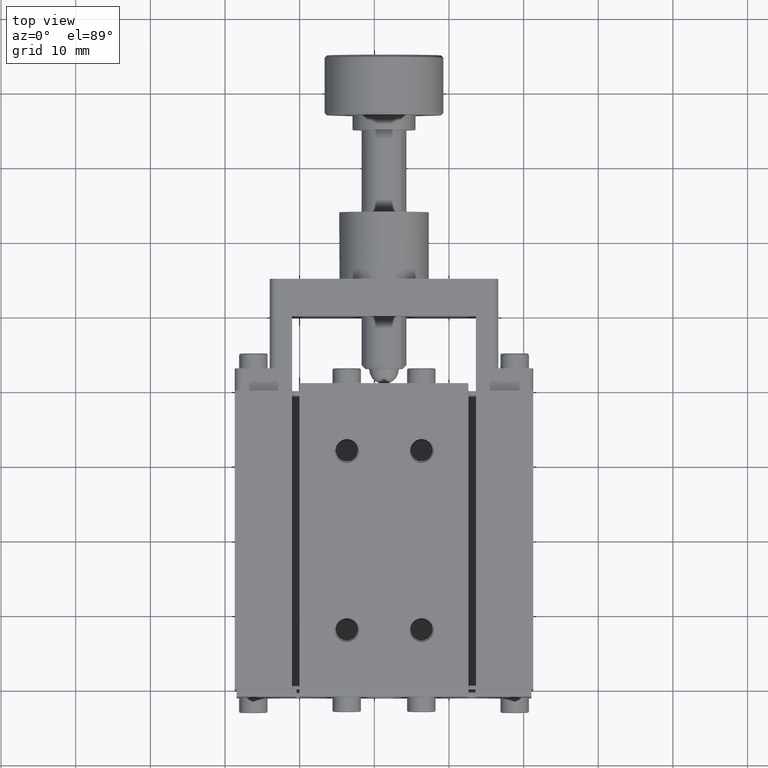
[diagram: clean part render]
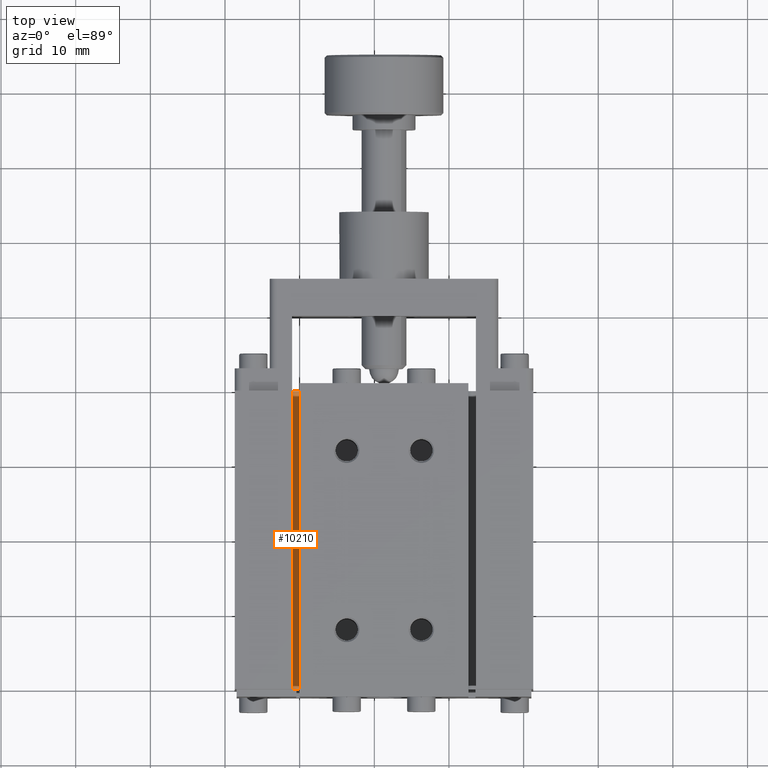
[diagram: same view with one face highlighted and labeled with its STEP entity id]
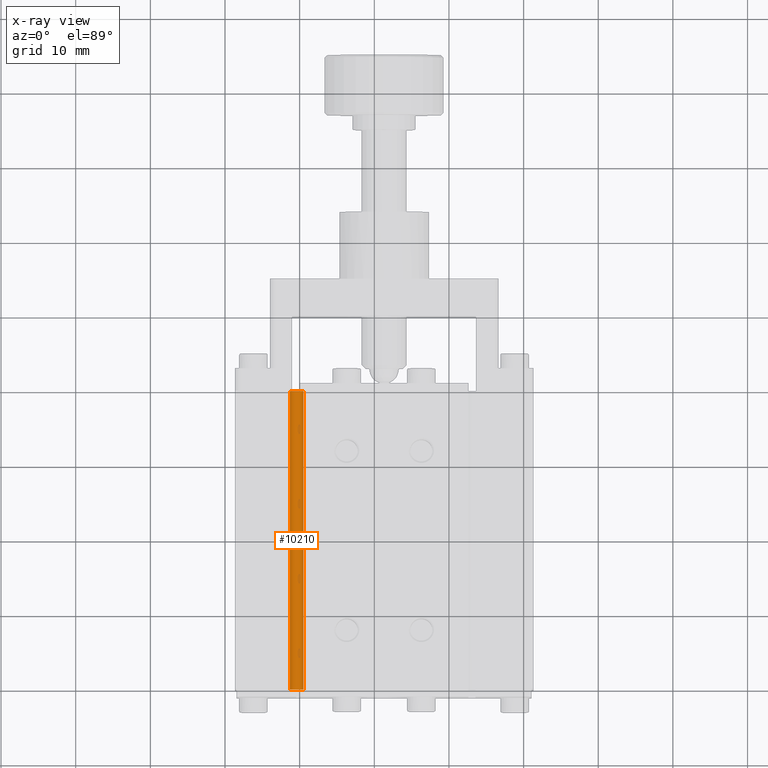
[diagram: x-ray of the same camera — body ghosted, the highlighted face saturated]
A machine part, top view. The second image highlights one B-rep face of the part: STEP entity #10210.
The next image is the same camera in x-ray: the body ghosted, the highlighted face saturated — about 0% of this face is hidden behind the body in this view.
In plain terms, the highlighted cylindrical surface (edge-blend (fillet) strip) has radius 1 mm, axis along (0, -1, 0).
Its self-contained STEP definition (entity closure, byte-faithful):
#381=CYLINDRICAL_SURFACE('',#10940,1.);
#1235=FACE_OUTER_BOUND('',#1832,.T.);
#1832=EDGE_LOOP('',(#8570,#8571,#8572,#8573,#8574,#8575,#8576,#8577,#8578,
#8579,#8580,#8581));
#2610=LINE('',#16550,#3475);
#2611=LINE('',#16551,#3476);
#3475=VECTOR('',#12746,10.);
#3476=VECTOR('',#12747,10.);
#3813=CIRCLE('',#10654,1.);
#3816=CIRCLE('',#10660,1.);
#3866=CIRCLE('',#10745,1.);
#3867=CIRCLE('',#10746,1.);
#3873=CIRCLE('',#10759,1.);
#3879=CIRCLE('',#10769,1.);
#3955=CIRCLE('',#10941,1.);
#3956=CIRCLE('',#10942,1.);
#3957=CIRCLE('',#10943,1.);
#3958=CIRCLE('',#10944,1.);
#4528=VERTEX_POINT('',#16014);
#4529=VERTEX_POINT('',#16016);
#4534=VERTEX_POINT('',#16032);
#4535=VERTEX_POINT('',#16033);
#4609=VERTEX_POINT('',#16255);
#4610=VERTEX_POINT('',#16257);
#4627=VERTEX_POINT('',#16304);
#4628=VERTEX_POINT('',#16306);
#4646=VERTEX_POINT('',#16347);
#4647=VERTEX_POINT('',#16349);
#4755=VERTEX_POINT('',#17081);
#4756=VERTEX_POINT('',#17083);
#5678=EDGE_CURVE('',#4528,#4529,#3813,.T.);
#5685=EDGE_CURVE('',#4534,#4535,#3816,.T.);
#5798=EDGE_CURVE('',#4609,#4534,#3866,.T.);
#5800=EDGE_CURVE('',#4529,#4610,#3867,.T.);
#5823=EDGE_CURVE('',#4627,#4628,#3873,.T.);
#5843=EDGE_CURVE('',#4646,#4647,#3879,.T.);
#5958=EDGE_CURVE('',#4535,#4647,#2610,.T.);
#5959=EDGE_CURVE('',#4528,#4627,#2611,.T.);
#6072=EDGE_CURVE('',#4755,#4646,#3955,.T.);
#6073=EDGE_CURVE('',#4756,#4755,#3956,.T.);
#6074=EDGE_CURVE('',#4628,#4756,#3957,.T.);
#6075=EDGE_CURVE('',#4609,#4610,#3958,.T.);
#8570=ORIENTED_EDGE('',*,*,#5958,.T.);
#8571=ORIENTED_EDGE('',*,*,#5843,.F.);
#8572=ORIENTED_EDGE('',*,*,#6072,.F.);
#8573=ORIENTED_EDGE('',*,*,#6073,.F.);
#8574=ORIENTED_EDGE('',*,*,#6074,.F.);
#8575=ORIENTED_EDGE('',*,*,#5823,.F.);
#8576=ORIENTED_EDGE('',*,*,#5959,.F.);
#8577=ORIENTED_EDGE('',*,*,#5678,.T.);
#8578=ORIENTED_EDGE('',*,*,#5800,.T.);
#8579=ORIENTED_EDGE('',*,*,#6075,.F.);
#8580=ORIENTED_EDGE('',*,*,#5798,.T.);
#8581=ORIENTED_EDGE('',*,*,#5685,.T.);
#10210=ADVANCED_FACE('',(#1235),#381,.T.);
#10654=AXIS2_PLACEMENT_3D('',#16018,#12196,#12197);
#10660=AXIS2_PLACEMENT_3D('',#16034,#12212,#12213);
#10745=AXIS2_PLACEMENT_3D('',#16256,#12445,#12446);
#10746=AXIS2_PLACEMENT_3D('',#16259,#12448,#12449);
#10759=AXIS2_PLACEMENT_3D('',#16307,#12491,#12492);
#10769=AXIS2_PLACEMENT_3D('',#16350,#12525,#12526);
#10940=AXIS2_PLACEMENT_3D('',#17080,#13005,#13006);
#10941=AXIS2_PLACEMENT_3D('',#17082,#13007,#13008);
#10942=AXIS2_PLACEMENT_3D('',#17084,#13009,#13010);
#10943=AXIS2_PLACEMENT_3D('',#17085,#13011,#13012);
#10944=AXIS2_PLACEMENT_3D('',#17086,#13013,#13014);
#12196=DIRECTION('center_axis',(2.14819080457236E-16,-1.,6.12323399573676E-17));
#12197=DIRECTION('ref_axis',(-0.997430584452069,-4.2469954240748E-16,0.0716395784437985));
#12212=DIRECTION('center_axis',(2.14819080457236E-16,-1.,6.12323399573676E-17));
#12213=DIRECTION('ref_axis',(-0.997430584452069,-4.2469954240748E-16,0.0716395784437985));
#12445=DIRECTION('center_axis',(2.14819080457236E-16,-1.,6.12323399573676E-17));
#12446=DIRECTION('ref_axis',(-0.997430584452069,-4.2469954240748E-16,0.0716395784437985));
#12448=DIRECTION('center_axis',(2.14819080457236E-16,-1.,6.12323399573676E-17));
#12449=DIRECTION('ref_axis',(-0.997430584452069,-4.2469954240748E-16,0.0716395784437985));
#12491=DIRECTION('center_axis',(2.14819080457236E-16,-1.,6.12323399573676E-17));
#12492=DIRECTION('ref_axis',(-0.997430584452069,-4.2469954240748E-16,0.0716395784437985));
#12525=DIRECTION('center_axis',(2.14819080457236E-16,-1.,6.12323399573676E-17));
#12526=DIRECTION('ref_axis',(-0.997430584452069,-4.2469954240748E-16,0.0716395784437985));
#12746=DIRECTION('',(1.53586740499868E-16,-1.,-1.08698571928469E-47));
#12747=DIRECTION('',(4.36863685382267E-16,-1.,1.50815553649942E-46));
#13005=DIRECTION('center_axis',(2.14819080457236E-16,-1.,6.12323399573676E-17));
#13006=DIRECTION('ref_axis',(0.999999999999213,7.68088469343674E-23,1.2543864112615E-6));
#13007=DIRECTION('center_axis',(2.14819080457236E-16,-1.,6.12323399573676E-17));
#13008=DIRECTION('ref_axis',(-0.997430584452069,-4.2469954240748E-16,0.0716395784437985));
#13009=DIRECTION('center_axis',(-5.4738221262688E-48,-1.,2.18952885050753E-47));
#13010=DIRECTION('ref_axis',(-0.997430584452069,-4.2469954240748E-16,0.0716395784437985));
#13011=DIRECTION('center_axis',(2.14819080457236E-16,-1.,6.12323399573676E-17));
#13012=DIRECTION('ref_axis',(-0.997430584452069,-4.2469954240748E-16,0.0716395784437985));
#13013=DIRECTION('center_axis',(0.,1.,0.));
#13014=DIRECTION('ref_axis',(-0.997430584452069,-4.2469954240748E-16,0.0716395784437985));
#16014=CARTESIAN_POINT('',(-1.30000176398115,40.,3.9000023519701));
#16016=CARTESIAN_POINT('',(-0.999999999999976,40.,3.63397681879087));
#16018=CARTESIAN_POINT('Origin',(-0.500002939960941,40.,4.50000391995591));
#16032=CARTESIAN_POINT('',(-0.999999999999976,40.,5.36603102112096));
#16033=CARTESIAN_POINT('',(-1.29999950608349,40.,5.10000065855568));
#16034=CARTESIAN_POINT('Origin',(-0.500002939960941,40.,4.50000391995591));
#16255=CARTESIAN_POINT('',(-9.08995101411847E-15,40.,5.36602762634647));
#16256=CARTESIAN_POINT('Origin',(-0.500002939960941,40.,4.50000391995591));
#16257=CARTESIAN_POINT('',(-9.08995101411847E-15,40.,3.63398021356536));
#16259=CARTESIAN_POINT('Origin',(-0.500002939960941,40.,4.50000391995591));
#16304=CARTESIAN_POINT('',(-1.30000176398114,-2.23333519407782E-14,3.90000235197011));
#16306=CARTESIAN_POINT('',(-0.449999999999988,3.77475828372553E-14,3.50125484937048));
#16307=CARTESIAN_POINT('Origin',(-0.500002939960932,-2.14819080457468E-16,
4.50000391995592));
#16347=CARTESIAN_POINT('',(-0.449999999999988,3.77475828372553E-14,5.49875299054135));
#16349=CARTESIAN_POINT('',(-1.29999950608348,-2.58860677625671E-14,5.10000065855568));
#16350=CARTESIAN_POINT('Origin',(-0.500002939960932,-2.14819080457468E-16,
4.50000391995592));
#16550=CARTESIAN_POINT('',(-1.29999950608349,20.,5.10000065855568));
#16551=CARTESIAN_POINT('',(-1.30000176398115,20.,3.90000235197011));
#17080=CARTESIAN_POINT('Origin',(-0.500002939960937,20.,4.50000391995592));
#17081=CARTESIAN_POINT('',(5.26074274697427E-14,2.22044604925031E-15,5.36602762634644));
#17082=CARTESIAN_POINT('Origin',(-0.500002939960932,-2.14819080457468E-16,
4.50000391995592));
#17083=CARTESIAN_POINT('',(6.61749709425935E-14,2.22044604925031E-15,3.6339802135654));
#17084=CARTESIAN_POINT('Origin',(-0.500002939960932,-4.44089209850063E-15,
4.50000391995592));
#17085=CARTESIAN_POINT('Origin',(-0.500002939960932,-2.14819080457468E-16,
4.50000391995592));
#17086=CARTESIAN_POINT('Origin',(-0.500002939960941,40.,4.50000391995591));